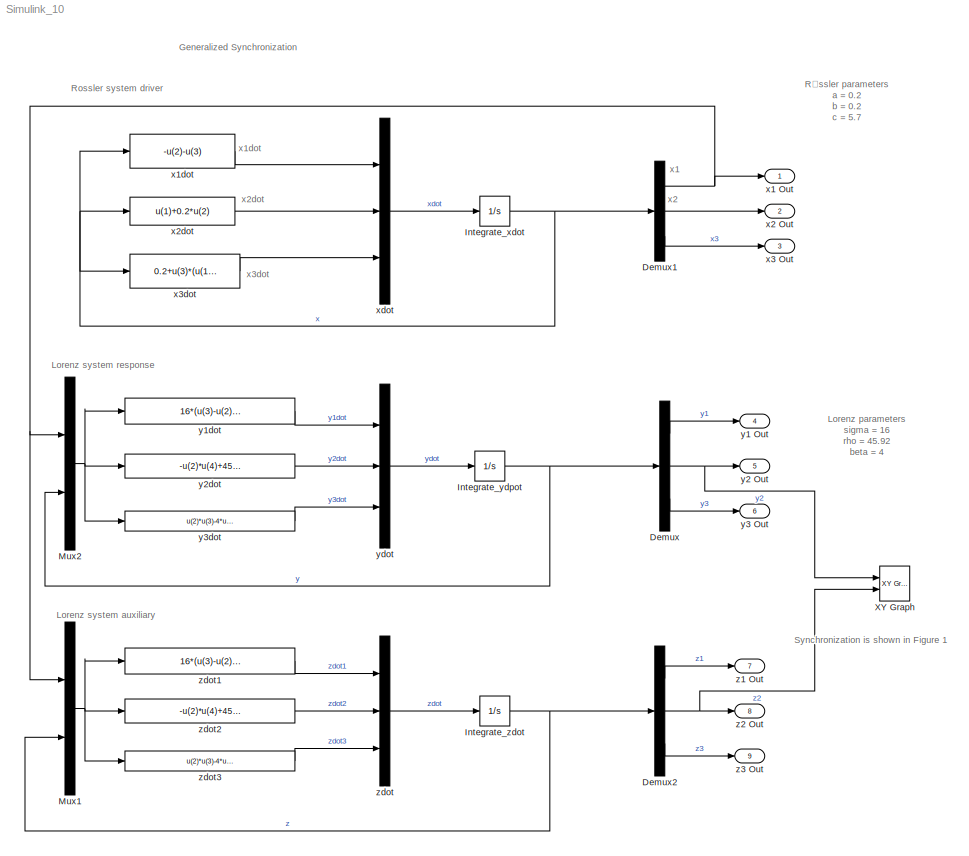
MODEL Simulink_10
KIND model
CONFIG StopFcn = % plot from t=50 to the end\nfor i=1:length(tout)\n  if(tout(i)) >= 50\n    break\n  end\nend\nplot(yout(i:end,5),yout(i:end,8), 'r')\naxis square
BLOCK [Demux] Demux
  Outputs = 3
  Ports = [1, 3]
  SID = 1
BLOCK [Demux] Demux1
  Outputs = 3
  Ports = [1, 3]
  SID = 2
BLOCK [Demux] Demux2
  Outputs = 3
  Ports = [1, 3]
  SID = 3
BLOCK [Integrator] Integrate_xdot
  ContinuousStateAttributes = 'x'
  InitialCondition = [2 -10 44]
  LowerSaturationLimit = 0
  Ports = [1, 1]
  SID = 4
  UpperSaturationLimit = 50
BLOCK [Integrator] Integrate_ydpot
  ContinuousStateAttributes = 'y'
  InitialCondition = [30 10 20]
  LowerSaturationLimit = 0
  Ports = [1, 1]
  SID = 5
  UpperSaturationLimit = 50
BLOCK [Integrator] Integrate_zdot
  InitialCondition = [31 11 22 ]
  LowerSaturationLimit = 0
  Ports = [1, 1]
  SID = 6
  UpperSaturationLimit = 50
BLOCK [Mux] Mux1
  DisplayOption = bar
  Inputs = [1 3]
  Ports = [2, 1]
  SID = 7
BLOCK [Mux] Mux2
  DisplayOption = bar
  Inputs = [1 3]
  Ports = [2, 1]
  SID = 8
BLOCK [Reference] XY Graph  REF=simulink/Sinks/XY Graph
  FunctionWithSeparateData = off
  Ports = [2]
  RTWMemSecDataConstants = Inherit from model
  RTWMemSecDataInternal = Inherit from model
  RTWMemSecDataParameters = Inherit from model
  RTWMemSecFuncExecute = Inherit from model
  RTWMemSecFuncInitTerm = Inherit from model
  SID = 9
  ShowPortLabels = FromPortIcon
  SourceBlock = simulink/Sinks/XY Graph
  SourceProductBaseCode = SL
  SourceProductName = Simulink
  SourceType = XY scope.
  SystemSampleTime = -1
  st = -1
  xmax = 50
  xmin = -50
  ymax = 50
  ymin = -50
BLOCK [Outport] x1 Out
  IconDisplay = Port number
  SID = 22
BLOCK [Fcn] x1dot
  Description = sdhdkbkdf
  Expr = -u(2)-u(3)
  SID = 10
BLOCK [Outport] x2 Out
  IconDisplay = Port number
  Port = 2
  SID = 23
BLOCK [Fcn] x2dot
  Expr = u(1)+0.2*u(2)
  SID = 11
BLOCK [Outport] x3 Out
  IconDisplay = Port number
  Port = 3
  SID = 24
BLOCK [Fcn] x3dot
  Expr = 0.2+u(3)*(u(1)-5.7)
  SID = 12
BLOCK [Mux] xdot
  DisplayOption = bar
  Inputs = 3
  Ports = [3, 1]
  SID = 13
BLOCK [Outport] y1 Out
  IconDisplay = Port number
  Port = 4
  SID = 25
BLOCK [Fcn] y1dot
  Description = sdhdkbkdf
  Expr = 16*(u(3)-u(2))-8*(u(2)-u(1))
  SID = 14
BLOCK [Outport] y2 Out
  IconDisplay = Port number
  Port = 5
  SID = 26
BLOCK [Fcn] y2dot
  Expr = -u(2)*u(4)+45.92*u(2)-u(3)
  SID = 15
BLOCK [Outport] y3 Out
  IconDisplay = Port number
  Port = 6
  SID = 27
BLOCK [Fcn] y3dot
  Expr = u(2)*u(3)-4*u(4)
  SID = 16
BLOCK [Mux] ydot
  DisplayOption = bar
  Inputs = 3
  Ports = [3, 1]
  SID = 17
BLOCK [Outport] z1 Out
  IconDisplay = Port number
  Port = 7
  SID = 28
BLOCK [Outport] z2 Out
  IconDisplay = Port number
  Port = 8
  SID = 29
BLOCK [Outport] z3 Out
  IconDisplay = Port number
  Port = 9
  SID = 30
BLOCK [Mux] zdot
  DisplayOption = bar
  Inputs = 3
  Ports = [3, 1]
  SID = 18
BLOCK [Fcn] zdot1
  Description = sdhdkbkdf
  Expr = 16*(u(3)-u(2))-8*(u(2)-u(1))
  SID = 19
BLOCK [Fcn] zdot2
  Expr = -u(2)*u(4)+45.92*u(2)-u(3)
  SID = 20
BLOCK [Fcn] zdot3
  Expr = u(2)*u(3)-4*u(4)
  SID = 21
ANNOTATION (root): Generalized Synchronization
ANNOTATION (root): Lorenz parameters\nsigma = 16\nrho = 45.92\nbeta = 4
ANNOTATION (root): Lorenz system auxiliary
ANNOTATION (root): Lorenz system response
ANNOTATION (root): Rossler system driver
ANNOTATION (root): R�ssler parameters\na = 0.2\nb = 0.2\nc = 5.7
ANNOTATION (root): Synchronization is shown in Figure 1
ANNOTATION (root): x1
ANNOTATION (root): x1dot
ANNOTATION (root): x2
ANNOTATION (root): x2dot
ANNOTATION (root): x3dot
NET Demux1:1 -> Mux1:1, Mux2:1, x1 Out:1
LINE Demux1:2 -> x2 Out:1
LINE Demux1:3 -> x3 Out:1
LINE Demux2:1 -> z1 Out:1
NET Demux2:2 -> XY Graph:2, z2 Out:1
LINE Demux2:3 -> z3 Out:1
LINE Demux:1 -> y1 Out:1
NET Demux:2 -> XY Graph:1, y2 Out:1
LINE Demux:3 -> y3 Out:1
NET Integrate_xdot:1 -> Demux1:1, x1dot:1, x2dot:1, x3dot:1
NET Integrate_ydpot:1 -> Demux:1, Mux2:2
NET Integrate_zdot:1 -> Demux2:1, Mux1:2
NET Mux1:1 -> zdot1:1, zdot2:1, zdot3:1
NET Mux2:1 -> y1dot:1, y2dot:1, y3dot:1
LINE x1dot:1 -> xdot:1
LINE x2dot:1 -> xdot:2
LINE x3dot:1 -> xdot:3
LINE xdot:1 -> Integrate_xdot:1
LINE y1dot:1 -> ydot:1
LINE y2dot:1 -> ydot:2
LINE y3dot:1 -> ydot:3
LINE ydot:1 -> Integrate_ydpot:1
LINE zdot1:1 -> zdot:1
LINE zdot2:1 -> zdot:2
LINE zdot3:1 -> zdot:3
LINE zdot:1 -> Integrate_zdot:1
note: NET lines group one-source signal fan-out (src -> all destinations, sorted); 1:1 wires keep LINE
